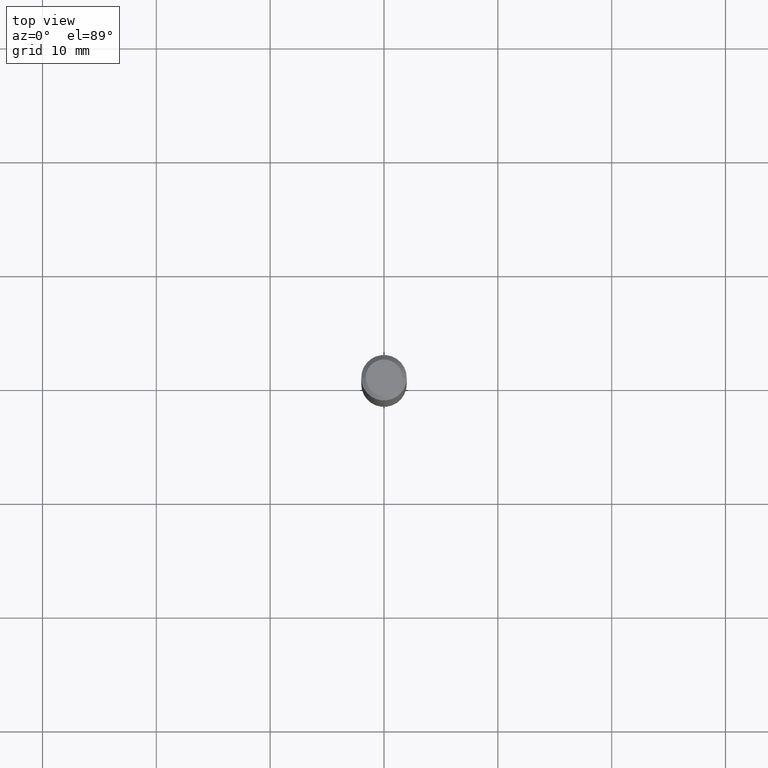
[diagram: clean part render]
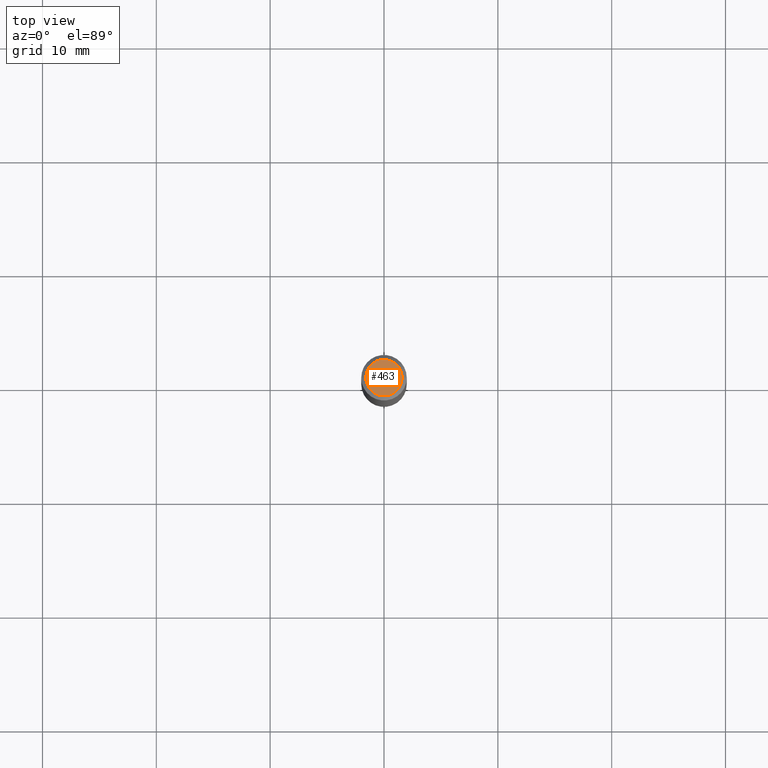
[diagram: same view with one face highlighted and labeled with its STEP entity id]
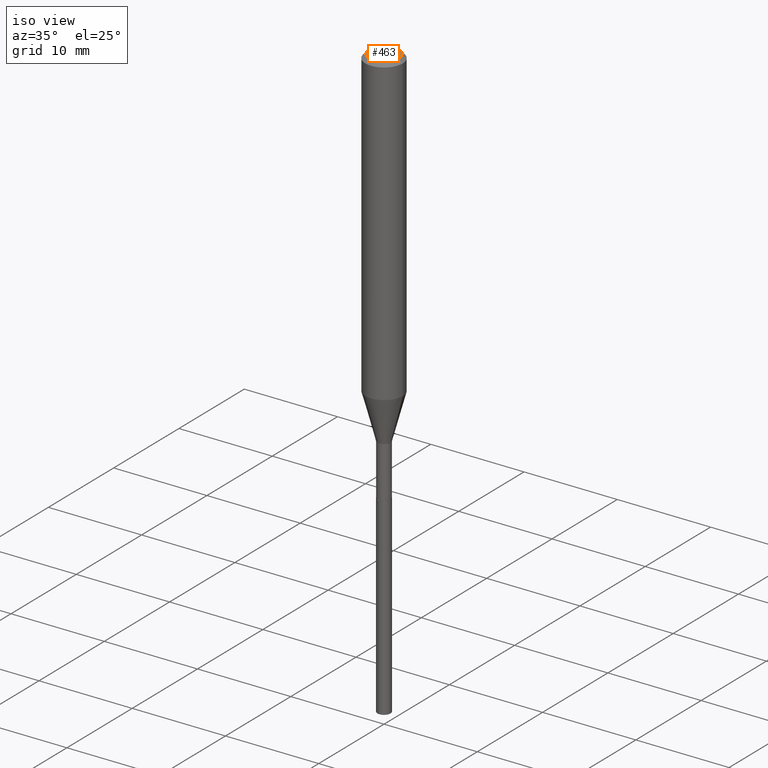
[diagram: same view with one face highlighted and labeled with its STEP entity id]
A machine part, top view. The second image highlights one B-rep face of the part: STEP entity #463.
A second angle (iso view) of the same face is appended — the face is thin or edge-on in the first view.
In plain terms, the highlighted planar face has unit normal (0, -0, -1).
Its self-contained STEP definition (entity closure, byte-faithful):
#24 = AXIS2_PLACEMENT_3D ( 'NONE', #377, #268, #303 ) ;
#32 = ORIENTED_EDGE ( 'NONE', *, *, #79, .T. ) ;
#78 = CARTESIAN_POINT ( 'NONE',  ( 0.06300000000000000044, -5.137332111354472216E-16, -3.855188123712532709E-18 ) ) ;
#79 = EDGE_CURVE ( 'NONE', #140, #180, #338, .T. ) ;
#139 = CARTESIAN_POINT ( 'NONE',  ( -0.06300000000000000044, 4.674220642376242452E-16, -3.855188123719040041E-18 ) ) ;
#140 = VERTEX_POINT ( 'NONE', #139 ) ;
#155 = AXIS2_PLACEMENT_3D ( 'NONE', #169, #326, #477 ) ;
#160 = PLANE ( 'NONE',  #155 ) ;
#169 = CARTESIAN_POINT ( 'NONE',  ( 4.713871149261278955E-47, -6.730158695841834933E-33, -1.927594061857933439E-18 ) ) ;
#180 = VERTEX_POINT ( 'NONE', #78 ) ;
#192 = CIRCLE ( 'NONE', #24, 0.06300000000000000044 ) ;
#230 = EDGE_LOOP ( 'NONE', ( #32, #455 ) ) ;
#268 = DIRECTION ( 'NONE',  ( -2.445468806185136597E-29, 3.491481338843145583E-15, 1.000000000000000000 ) ) ;
#285 = DIRECTION ( 'NONE',  ( 1.000000000000000000, -6.982962677686265922E-15, 4.875905316334701673E-29 ) ) ;
#303 = DIRECTION ( 'NONE',  ( 1.000000000000000000, -6.982962677686265922E-15, 4.875905316334701673E-29 ) ) ;
#320 = CARTESIAN_POINT ( 'NONE',  ( 9.427742298522557911E-47, -1.346031739168366987E-32, -3.855188123715866879E-18 ) ) ;
#326 = DIRECTION ( 'NONE',  ( 2.438088387897960049E-29, -3.491481338843145188E-15, -1.000000000000000000 ) ) ;
#338 = CIRCLE ( 'NONE', #408, 0.06300000000000000044 ) ;
#346 = EDGE_CURVE ( 'NONE', #180, #140, #192, .T. ) ;
#377 = CARTESIAN_POINT ( 'NONE',  ( 9.427742298522557911E-47, -1.346031739168366987E-32, -3.855188123715866879E-18 ) ) ;
#408 = AXIS2_PLACEMENT_3D ( 'NONE', #320, #470, #285 ) ;
#455 = ORIENTED_EDGE ( 'NONE', *, *, #346, .T. ) ;
#463 = ADVANCED_FACE ( 'NONE', ( #475 ), #160, .F. ) ;
#470 = DIRECTION ( 'NONE',  ( -2.445468806185136597E-29, 3.491481338843145583E-15, 1.000000000000000000 ) ) ;
#475 = FACE_OUTER_BOUND ( 'NONE', #230, .T. ) ;
#477 = DIRECTION ( 'NONE',  ( -1.000000000000000000, 6.982962677686265922E-15, -4.876176775795935793E-29 ) ) ;